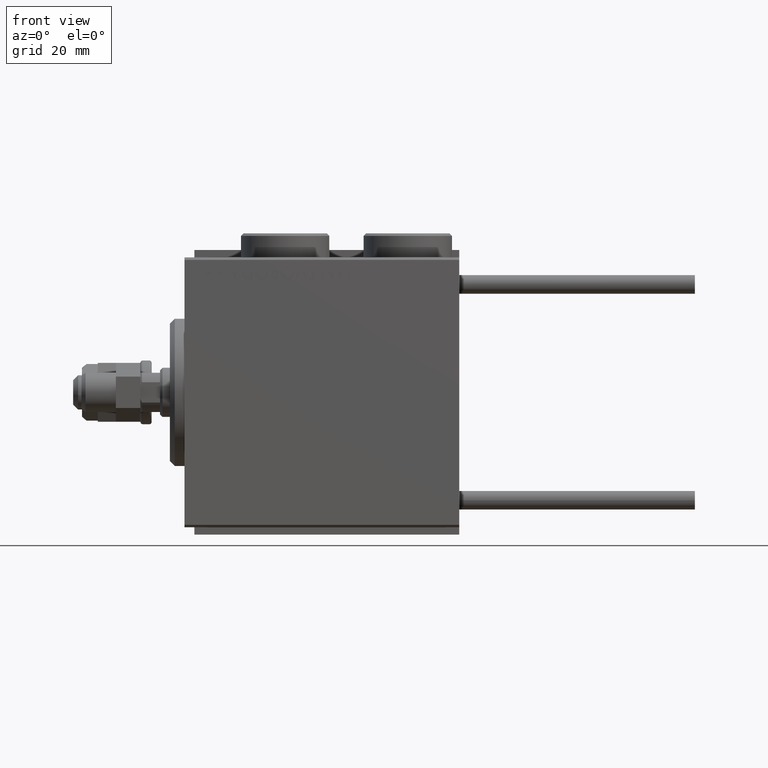
[diagram: clean part render]
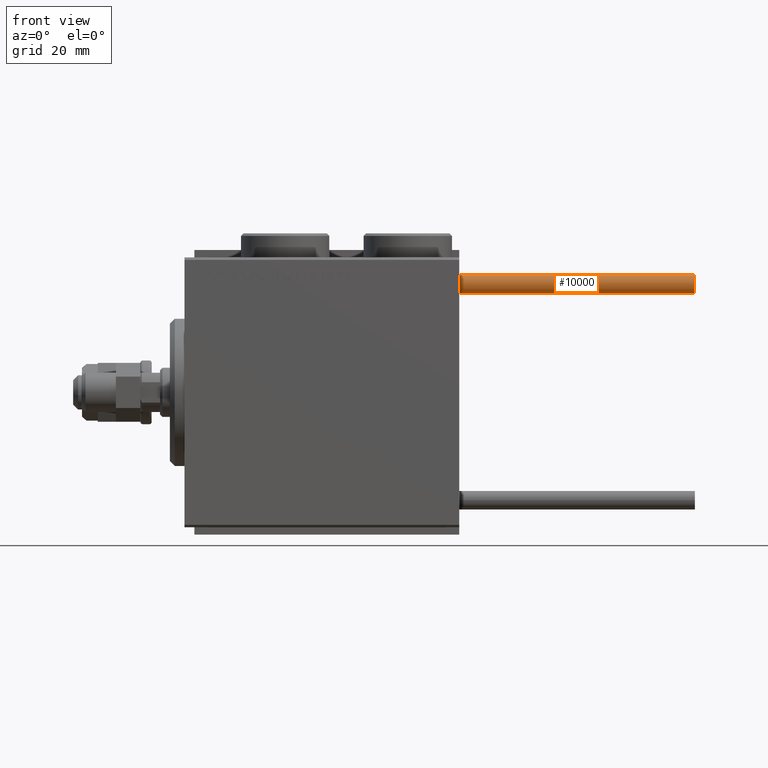
[diagram: same view with one face highlighted and labeled with its STEP entity id]
A machine part, front view. The second image highlights one B-rep face of the part: STEP entity #10000.
In plain terms, the highlighted cylindrical surface (edge-blend (fillet) strip) has radius 1.9 mm, axis along (-1, -0, -0).
Its self-contained STEP definition (entity closure, byte-faithful):
#2296 = EDGE_CURVE ( 'NONE', #42220, #5112, #30790, .T. ) ;
#2376 = CARTESIAN_POINT ( 'NONE',  ( 0.000000000000000000, 0.000000000000000000, 0.000000000000000000 ) ) ;
#3121 = ORIENTED_EDGE ( 'NONE', *, *, #2296, .F. ) ;
#3846 = DIRECTION ( 'NONE',  ( -0.000000000000000000, -0.000000000000000000, -1.000000000000000000 ) ) ;
#5112 = VERTEX_POINT ( 'NONE', #31450 ) ;
#5177 = VECTOR ( 'NONE', #31020, 1000.000000000000000 ) ;
#5898 = CARTESIAN_POINT ( 'NONE',  ( 0.000000000000000000, 0.000000000000000000, 48.00000000000000000 ) ) ;
#6547 = CARTESIAN_POINT ( 'NONE',  ( -1.899999999999999467, 0.000000000000000000, 48.00000000000000000 ) ) ;
#7508 = CIRCLE ( 'NONE', #43457, 1.899999999999999467 ) ;
#8860 = DIRECTION ( 'NONE',  ( -0.000000000000000000, -0.000000000000000000, -1.000000000000000000 ) ) ;
#9398 = DIRECTION ( 'NONE',  ( 1.000000000000000000, 0.000000000000000000, 0.000000000000000000 ) ) ;
#10000 = ADVANCED_FACE ( 'NONE', ( #11910 ), #28221, .T. ) ;
#10486 = VERTEX_POINT ( 'NONE', #20011 ) ;
#10541 = AXIS2_PLACEMENT_3D ( 'NONE', #44583, #3846, #20194 ) ;
#11805 = CARTESIAN_POINT ( 'NONE',  ( 1.899999999999999467, 2.326828918379970872E-16, 48.00000000000000000 ) ) ;
#11910 = FACE_OUTER_BOUND ( 'NONE', #23126, .T. ) ;
#14181 = LINE ( 'NONE', #26744, #5177 ) ;
#14720 = DIRECTION ( 'NONE',  ( 1.000000000000000000, 0.000000000000000000, 0.000000000000000000 ) ) ;
#18828 = AXIS2_PLACEMENT_3D ( 'NONE', #5898, #45824, #9398 ) ;
#20011 = CARTESIAN_POINT ( 'NONE',  ( 1.899999999999999467, 2.326828918379970872E-16, 0.000000000000000000 ) ) ;
#20194 = DIRECTION ( 'NONE',  ( -1.000000000000000000, 0.000000000000000000, 0.000000000000000000 ) ) ;
#22862 = VECTOR ( 'NONE', #8860, 1000.000000000000000 ) ;
#23126 = EDGE_LOOP ( 'NONE', ( #33055, #3121, #34859, #27653 ) ) ;
#23999 = EDGE_CURVE ( 'NONE', #5112, #10486, #48490, .T. ) ;
#26744 = CARTESIAN_POINT ( 'NONE',  ( -1.899999999999999467, 0.000000000000000000, 48.00000000000000000 ) ) ;
#27653 = ORIENTED_EDGE ( 'NONE', *, *, #28671, .T. ) ;
#28221 = CYLINDRICAL_SURFACE ( 'NONE', #10541, 1.899999999999999467 ) ;
#28671 = EDGE_CURVE ( 'NONE', #30368, #10486, #7508, .T. ) ;
#29699 = CARTESIAN_POINT ( 'NONE',  ( -1.899999999999999467, 0.000000000000000000, 0.000000000000000000 ) ) ;
#30368 = VERTEX_POINT ( 'NONE', #29699 ) ;
#30790 = CIRCLE ( 'NONE', #18828, 1.899999999999999467 ) ;
#31020 = DIRECTION ( 'NONE',  ( -0.000000000000000000, -0.000000000000000000, -1.000000000000000000 ) ) ;
#31450 = CARTESIAN_POINT ( 'NONE',  ( 1.899999999999999467, 2.326828918379970872E-16, 48.00000000000000000 ) ) ;
#33055 = ORIENTED_EDGE ( 'NONE', *, *, #23999, .F. ) ;
#34859 = ORIENTED_EDGE ( 'NONE', *, *, #37532, .T. ) ;
#37532 = EDGE_CURVE ( 'NONE', #42220, #30368, #14181, .T. ) ;
#38820 = DIRECTION ( 'NONE',  ( 0.000000000000000000, 0.000000000000000000, 1.000000000000000000 ) ) ;
#42220 = VERTEX_POINT ( 'NONE', #6547 ) ;
#43457 = AXIS2_PLACEMENT_3D ( 'NONE', #2376, #38820, #14720 ) ;
#44583 = CARTESIAN_POINT ( 'NONE',  ( 0.000000000000000000, 0.000000000000000000, 48.00000000000000000 ) ) ;
#45824 = DIRECTION ( 'NONE',  ( 0.000000000000000000, 0.000000000000000000, 1.000000000000000000 ) ) ;
#48490 = LINE ( 'NONE', #11805, #22862 ) ;